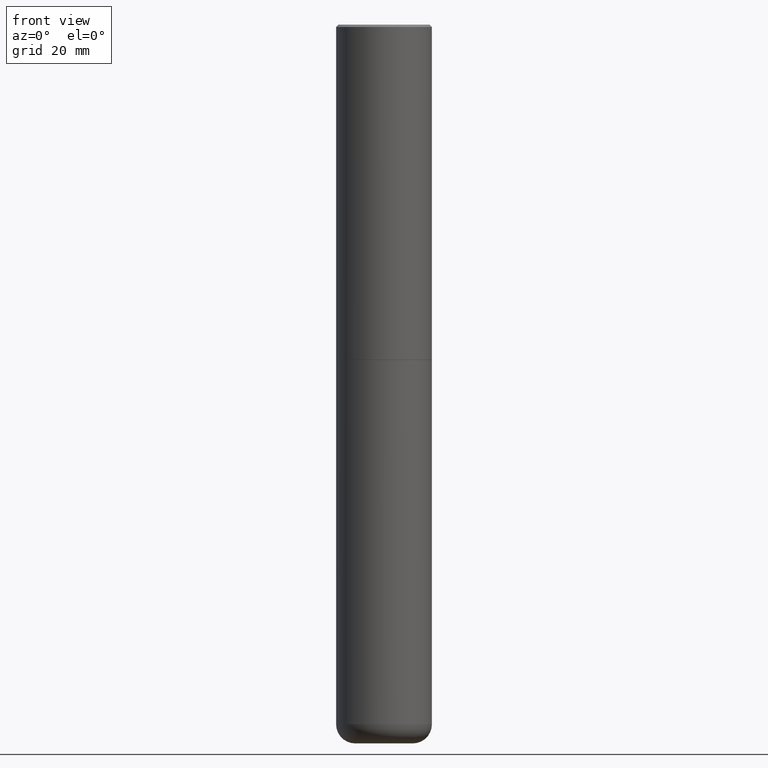
[diagram: clean part render]
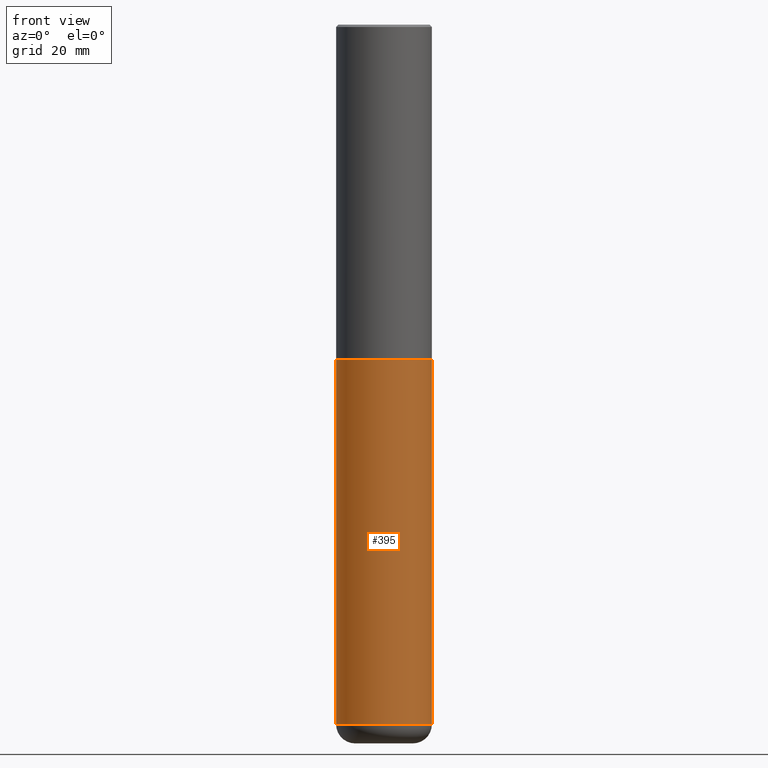
[diagram: same view with one face highlighted and labeled with its STEP entity id]
A machine part, front view. The second image highlights one B-rep face of the part: STEP entity #395.
In plain terms, the highlighted cylindrical surface (partial cylindrical patch) has radius 10 mm, axis along (-0, 0, 1).
Its self-contained STEP definition (entity closure, byte-faithful):
#14 = EDGE_CURVE ( 'NONE', #163, #66, #18, .T. ) ;
#18 = CIRCLE ( 'NONE', #45, 0.3937000000000000499 ) ;
#23 = ORIENTED_EDGE ( 'NONE', *, *, #296, .F. ) ;
#44 = DIRECTION ( 'NONE',  ( -2.445468806185136877E-29, 3.491481338843145188E-15, 1.000000000000000000 ) ) ;
#45 = AXIS2_PLACEMENT_3D ( 'NONE', #297, #132, #201 ) ;
#51 = VECTOR ( 'NONE', #44, 39.37007874015748143 ) ;
#56 = ORIENTED_EDGE ( 'NONE', *, *, #183, .T. ) ;
#57 = CIRCLE ( 'NONE', #257, 0.3937000000000000499 ) ;
#59 = CARTESIAN_POINT ( 'NONE',  ( 0.3937000000000000499, -1.237136582792290287E-14, -2.755899999999998240 ) ) ;
#60 = FACE_OUTER_BOUND ( 'NONE', #157, .T. ) ;
#66 = VERTEX_POINT ( 'NONE', #59 ) ;
#76 = CARTESIAN_POINT ( 'NONE',  ( 0.3937000000000000499, -2.749192406205083217E-15, 1.919750796630860172E-29 ) ) ;
#81 = ORIENTED_EDGE ( 'NONE', *, *, #176, .T. ) ;
#132 = DIRECTION ( 'NONE',  ( -2.445468806185136597E-29, 3.491481338843145583E-15, 1.000000000000000000 ) ) ;
#140 = CARTESIAN_POINT ( 'NONE',  ( 1.405655469795216423E-28, -2.006903473567040335E-14, -5.748000000000000220 ) ) ;
#157 = EDGE_LOOP ( 'NONE', ( #23, #81, #56, #374 ) ) ;
#163 = VERTEX_POINT ( 'NONE', #239 ) ;
#176 = EDGE_CURVE ( 'NONE', #342, #217, #57, .T. ) ;
#183 = EDGE_CURVE ( 'NONE', #217, #66, #333, .T. ) ;
#189 = CARTESIAN_POINT ( 'NONE',  ( -0.3937000000000000499, 2.797406750687514786E-15, -1.936584745033356735E-29 ) ) ;
#201 = DIRECTION ( 'NONE',  ( 1.000000000000000000, -6.982962677686267499E-15, 0.000000000000000000 ) ) ;
#210 = DIRECTION ( 'NONE',  ( -2.445468806185136597E-29, 3.491481338843145583E-15, 1.000000000000000000 ) ) ;
#217 = VERTEX_POINT ( 'NONE', #244 ) ;
#225 = CYLINDRICAL_SURFACE ( 'NONE', #415, 0.3937000000000000499 ) ;
#228 = CARTESIAN_POINT ( 'NONE',  ( -0.3937000000000002164, -1.727162798498288620E-14, -5.748000000000000220 ) ) ;
#239 = CARTESIAN_POINT ( 'NONE',  ( -0.3937000000000000499, -1.204819732800659672E-14, -2.755899999999998240 ) ) ;
#244 = CARTESIAN_POINT ( 'NONE',  ( 0.3937000000000002164, -2.281822714187548973E-14, -5.748000000000000220 ) ) ;
#245 = LINE ( 'NONE', #189, #406 ) ;
#257 = AXIS2_PLACEMENT_3D ( 'NONE', #140, #210, #360 ) ;
#295 = DIRECTION ( 'NONE',  ( 1.000000000000000000, -6.982962677686265922E-15, 4.876176775795935793E-29 ) ) ;
#296 = EDGE_CURVE ( 'NONE', #342, #163, #245, .T. ) ;
#297 = CARTESIAN_POINT ( 'NONE',  ( 6.739467482965614869E-29, -9.622173421717819657E-15, -2.755899999999998240 ) ) ;
#333 = LINE ( 'NONE', #76, #51 ) ;
#342 = VERTEX_POINT ( 'NONE', #228 ) ;
#348 = CARTESIAN_POINT ( 'NONE',  ( 0.000000000000000000, 0.000000000000000000, 0.000000000000000000 ) ) ;
#360 = DIRECTION ( 'NONE',  ( 1.000000000000000000, -6.982962677686267499E-15, 0.000000000000000000 ) ) ;
#374 = ORIENTED_EDGE ( 'NONE', *, *, #14, .F. ) ;
#378 = DIRECTION ( 'NONE',  ( -2.445468806185136877E-29, 3.491481338843145188E-15, 1.000000000000000000 ) ) ;
#387 = DIRECTION ( 'NONE',  ( -2.445468806185136597E-29, 3.491481338843145583E-15, 1.000000000000000000 ) ) ;
#395 = ADVANCED_FACE ( 'NONE', ( #60 ), #225, .T. ) ;
#406 = VECTOR ( 'NONE', #378, 39.37007874015748143 ) ;
#415 = AXIS2_PLACEMENT_3D ( 'NONE', #348, #387, #295 ) ;